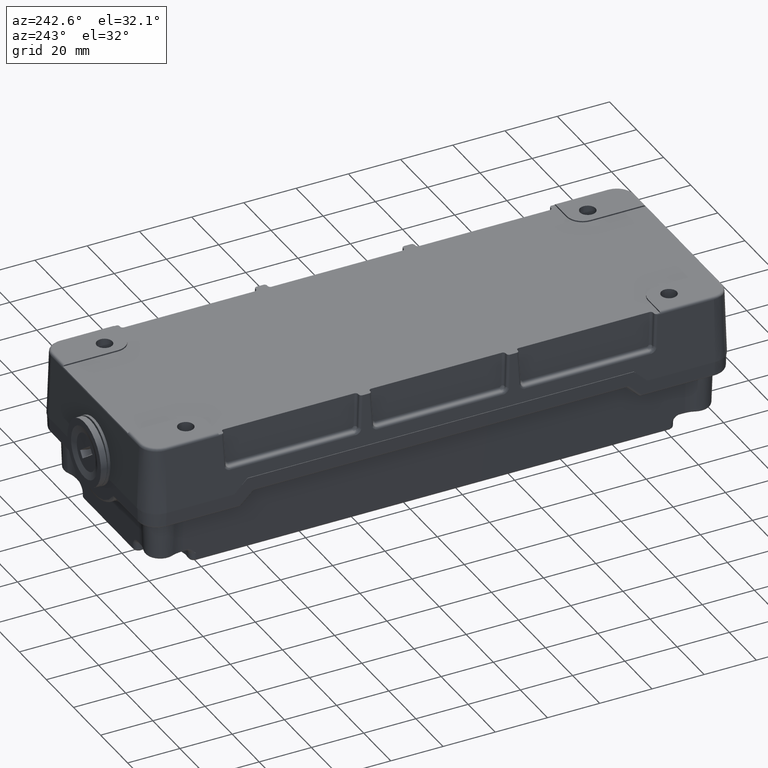
[diagram: clean part render]
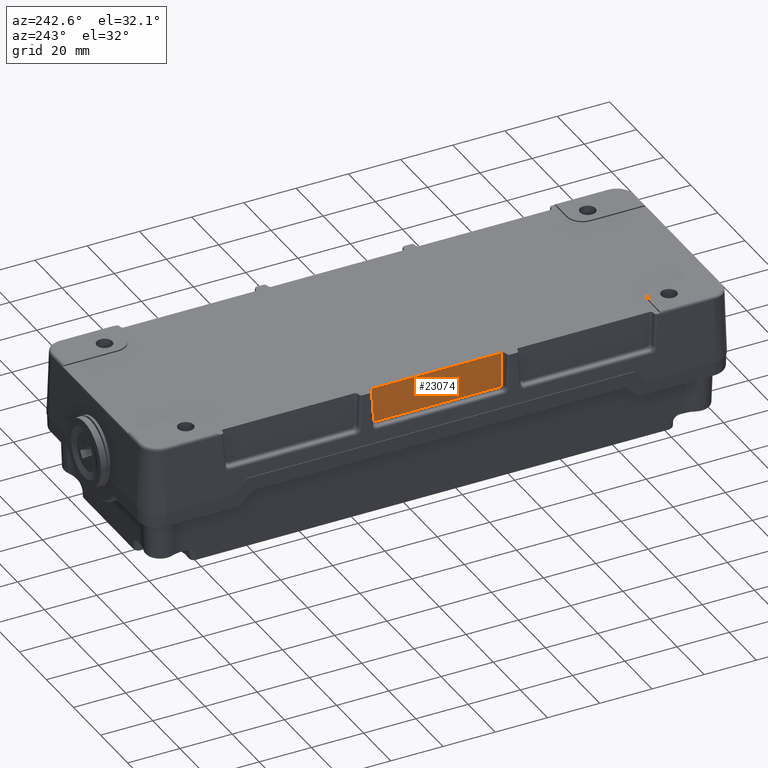
[diagram: same view with one face highlighted and labeled with its STEP entity id]
A machine part, auxiliary view. The second image highlights one B-rep face of the part: STEP entity #23074.
In plain terms, the highlighted planar face has unit normal (0.9986, -0, -0.0523).
Its self-contained STEP definition (entity closure, byte-faithful):
#18719=CARTESIAN_POINT('',(-4.423058433460813,56.234071963655332,12.421496065635589));
#18720=VERTEX_POINT('',#18719);
#18728=CARTESIAN_POINT('',(-3.763846975557775,56.893283421558365,25.000000000000004));
#18729=VERTEX_POINT('',#18728);
#18730=CARTESIAN_POINT('',(-4.423058433460813,56.234071963655332,12.421496065635589));
#18731=DIRECTION('',(0.052264427688714,0.052264427688714,0.997264688634237));
#18732=VECTOR('',#18731,12.613004428734747);
#18733=LINE('',#18730,#18732);
#18734=EDGE_CURVE('',#18720,#18729,#18733,.T.);
#18813=CARTESIAN_POINT('',(-4.447890917480661,55.734757196278046,11.947664043757060));
#18814=VERTEX_POINT('',#18813);
#18822=CARTESIAN_POINT('',(-4.421687027839139,55.734757196278046,12.447664043757062));
#18823=DIRECTION('',(0.998629534754574,-9.594532E-017,-0.052335956242944));
#18824=DIRECTION('',(-0.052335956242944,-1.392806E-014,-0.998629534754574));
#18825=AXIS2_PLACEMENT_3D('',#18822,#18823,#18824);
#18826=ELLIPSE('',#18825,0.500686172998961,0.500000000000000);
#18827=EDGE_CURVE('',#18814,#18720,#18826,.T.);
#18847=CARTESIAN_POINT('',(-4.447890917480665,8.049068716347831,11.947664043757062));
#18848=VERTEX_POINT('',#18847);
#18856=CARTESIAN_POINT('',(-4.447890917480665,8.049068716347831,11.947664043757062));
#18857=DIRECTION('',(0.0,1.0,0.0));
#18858=VECTOR('',#18857,47.685688479930214);
#18859=LINE('',#18856,#18858);
#18860=EDGE_CURVE('',#18848,#18814,#18859,.T.);
#18931=CARTESIAN_POINT('',(-4.423058433460818,7.549753948970546,12.421496065635589));
#18932=VERTEX_POINT('',#18931);
#18940=CARTESIAN_POINT('',(-4.421687027839144,8.049068716347833,12.447664043757062));
#18941=DIRECTION('',(0.998629534754574,-9.594532E-017,-0.052335956242944));
#18942=DIRECTION('',(-0.052335956242944,1.254219E-014,-0.998629534754574));
#18943=AXIS2_PLACEMENT_3D('',#18940,#18941,#18942);
#18944=ELLIPSE('',#18943,0.500686172998960,0.500000000000000);
#18945=EDGE_CURVE('',#18932,#18848,#18944,.T.);
#18965=CARTESIAN_POINT('',(-3.763846975557780,6.890542491067508,25.000000000000004));
#18966=VERTEX_POINT('',#18965);
#18974=CARTESIAN_POINT('',(-3.763846975557780,6.890542491067508,25.000000000000004));
#18975=DIRECTION('',(-0.052264427688714,0.052264427688714,-0.997264688634237));
#18976=VECTOR('',#18975,12.613004428734747);
#18977=LINE('',#18974,#18976);
#18978=EDGE_CURVE('',#18966,#18932,#18977,.T.);
#21884=CARTESIAN_POINT('',(-3.763846975557775,56.893283421558365,25.000000000000004));
#21885=DIRECTION('',(0.0,-1.0,0.0));
#21886=VECTOR('',#21885,50.002740930490859);
#21887=LINE('',#21884,#21886);
#21888=EDGE_CURVE('',#18729,#18966,#21887,.T.);
#23061=CARTESIAN_POINT('',(-3.763846975557782,5.891912956312932,25.000000000000004));
#23062=DIRECTION('',(0.998629534754574,-9.594532E-017,-0.052335956242944));
#23063=DIRECTION('',(0.0,-1.0,0.0));
#23064=AXIS2_PLACEMENT_3D('',#23061,#23062,#23063);
#23065=PLANE('',#23064);
#23066=ORIENTED_EDGE('',*,*,#18978,.F.);
#23067=ORIENTED_EDGE('',*,*,#21888,.F.);
#23068=ORIENTED_EDGE('',*,*,#18734,.F.);
#23069=ORIENTED_EDGE('',*,*,#18827,.F.);
#23070=ORIENTED_EDGE('',*,*,#18860,.F.);
#23071=ORIENTED_EDGE('',*,*,#18945,.F.);
#23072=EDGE_LOOP('',(#23066,#23067,#23068,#23069,#23070,#23071));
#23073=FACE_OUTER_BOUND('',#23072,.T.);
#23074=ADVANCED_FACE('',(#23073),#23065,.F.);